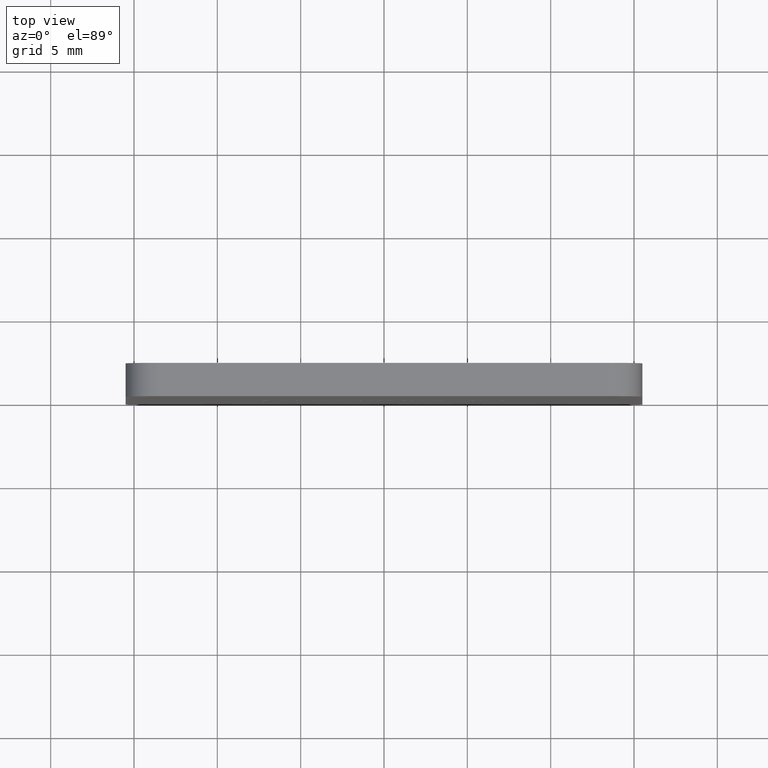
[diagram: clean part render]
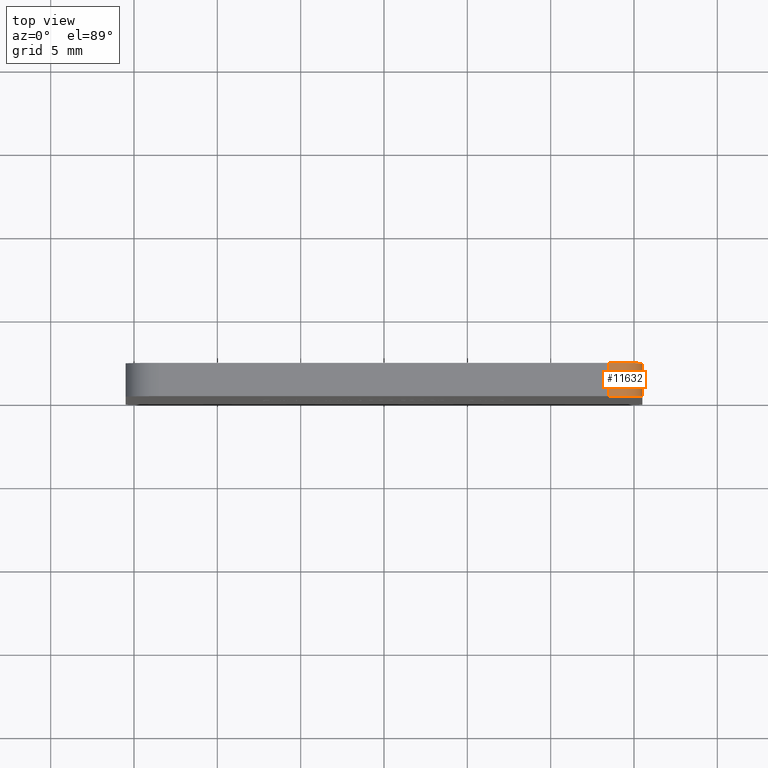
[diagram: same view with one face highlighted and labeled with its STEP entity id]
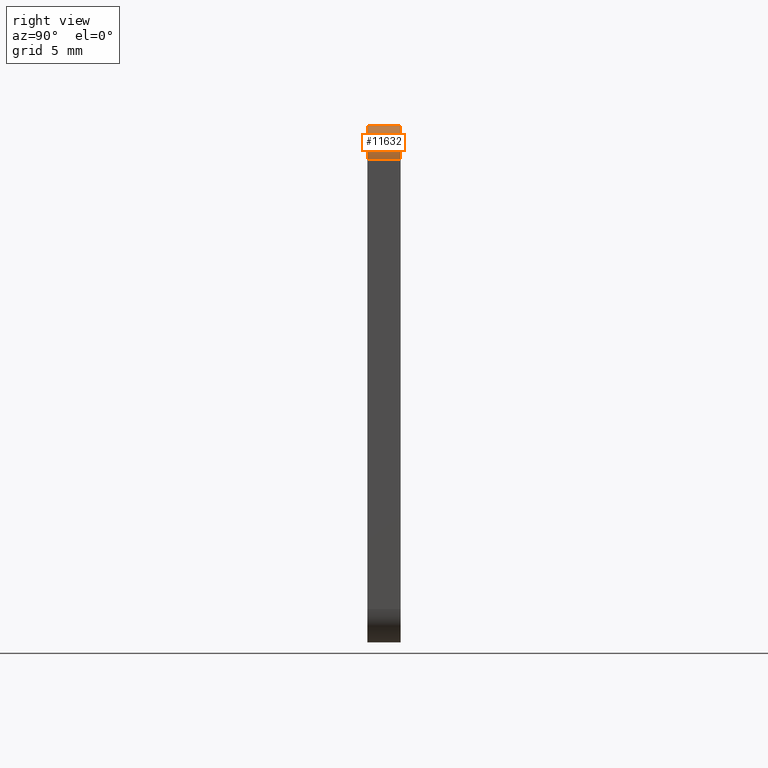
[diagram: same view with one face highlighted and labeled with its STEP entity id]
A machine part, top view. The second image highlights one B-rep face of the part: STEP entity #11632.
A second angle (right view) of the same face is appended — the face is thin or edge-on in the first view.
In plain terms, the highlighted cylindrical surface (edge-blend (fillet) strip) has radius 2 mm, axis along (0, -1, 0).
Its self-contained STEP definition (entity closure, byte-faithful):
#78 = CARTESIAN_POINT ( 'NONE',  ( 15.50000000000000500, 2.000000000000000000, 13.50000000000000700 ) ) ;
#203 = ORIENTED_EDGE ( 'NONE', *, *, #4779, .F. ) ;
#219 = CIRCLE ( 'NONE', #16481, 2.000000000000000000 ) ;
#266 = EDGE_CURVE ( 'NONE', #16198, #5144, #9571, .T. ) ;
#827 = VERTEX_POINT ( 'NONE', #15209 ) ;
#1896 = AXIS2_PLACEMENT_3D ( 'NONE', #15456, #15625, #10103 ) ;
#2785 = CARTESIAN_POINT ( 'NONE',  ( 13.50000000000000500, 2.000000000000000000, 13.50000000000000700 ) ) ;
#2828 = VECTOR ( 'NONE', #8498, 1000.000000000000000 ) ;
#2849 = ORIENTED_EDGE ( 'NONE', *, *, #6130, .F. ) ;
#2992 = CARTESIAN_POINT ( 'NONE',  ( 13.50000000000000700, 2.000000000000000000, 15.50000000000000500 ) ) ;
#3050 = FACE_OUTER_BOUND ( 'NONE', #8224, .T. ) ;
#4075 = DIRECTION ( 'NONE',  ( 0.0000000000000000000, -1.000000000000000000, 0.0000000000000000000 ) ) ;
#4128 = DIRECTION ( 'NONE',  ( 0.0000000000000000000, 0.0000000000000000000, -1.000000000000000000 ) ) ;
#4779 = EDGE_CURVE ( 'NONE', #5144, #827, #5472, .T. ) ;
#5144 = VERTEX_POINT ( 'NONE', #11282 ) ;
#5472 = CIRCLE ( 'NONE', #1896, 2.000000000000000000 ) ;
#5704 = LINE ( 'NONE', #15761, #12488 ) ;
#6130 = EDGE_CURVE ( 'NONE', #10707, #16198, #219, .T. ) ;
#6992 = ORIENTED_EDGE ( 'NONE', *, *, #266, .F. ) ;
#7171 = CARTESIAN_POINT ( 'NONE',  ( 13.50000000000000500, 2.000000000000000000, 13.50000000000000700 ) ) ;
#7866 = CARTESIAN_POINT ( 'NONE',  ( 15.50000000000000500, 2.000000000000000000, 13.50000000000000700 ) ) ;
#8224 = EDGE_LOOP ( 'NONE', ( #2849, #15801, #203, #6992 ) ) ;
#8412 = DIRECTION ( 'NONE',  ( 0.0000000000000000000, 1.000000000000000000, 0.0000000000000000000 ) ) ;
#8498 = DIRECTION ( 'NONE',  ( 0.0000000000000000000, -1.000000000000000000, 0.0000000000000000000 ) ) ;
#9571 = LINE ( 'NONE', #78, #2828 ) ;
#10103 = DIRECTION ( 'NONE',  ( 0.0000000000000000000, 0.0000000000000000000, 1.000000000000000000 ) ) ;
#10707 = VERTEX_POINT ( 'NONE', #2992 ) ;
#11282 = CARTESIAN_POINT ( 'NONE',  ( 15.50000000000000500, 0.0000000000000000000, 13.50000000000000700 ) ) ;
#11632 = ADVANCED_FACE ( 'NONE', ( #3050 ), #14856, .T. ) ;
#12488 = VECTOR ( 'NONE', #17390, 1000.000000000000000 ) ;
#14856 = CYLINDRICAL_SURFACE ( 'NONE', #15143, 2.000000000000000000 ) ;
#15143 = AXIS2_PLACEMENT_3D ( 'NONE', #2785, #4075, #4128 ) ;
#15209 = CARTESIAN_POINT ( 'NONE',  ( 13.50000000000000700, 0.0000000000000000000, 15.50000000000000500 ) ) ;
#15456 = CARTESIAN_POINT ( 'NONE',  ( 13.50000000000000500, 0.0000000000000000000, 13.50000000000000700 ) ) ;
#15625 = DIRECTION ( 'NONE',  ( -0.0000000000000000000, -1.000000000000000000, -0.0000000000000000000 ) ) ;
#15628 = EDGE_CURVE ( 'NONE', #827, #10707, #5704, .T. ) ;
#15761 = CARTESIAN_POINT ( 'NONE',  ( 13.50000000000000700, 2.000000000000000000, 15.50000000000000500 ) ) ;
#15801 = ORIENTED_EDGE ( 'NONE', *, *, #15628, .F. ) ;
#16198 = VERTEX_POINT ( 'NONE', #7866 ) ;
#16481 = AXIS2_PLACEMENT_3D ( 'NONE', #7171, #8412, #16606 ) ;
#16606 = DIRECTION ( 'NONE',  ( 0.0000000000000000000, 0.0000000000000000000, 1.000000000000000000 ) ) ;
#17390 = DIRECTION ( 'NONE',  ( -0.0000000000000000000, 1.000000000000000000, -0.0000000000000000000 ) ) ;